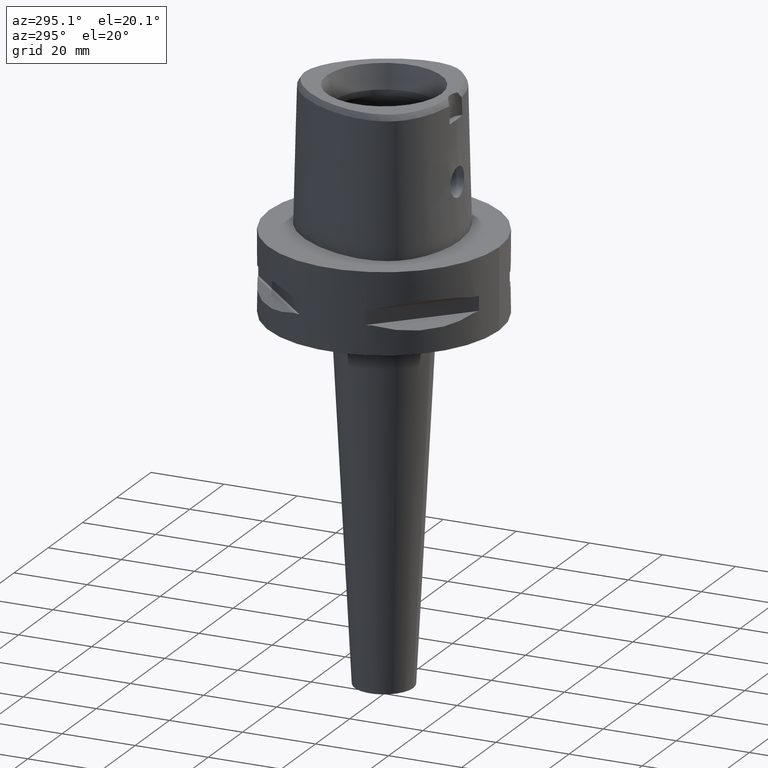
[diagram: clean part render]
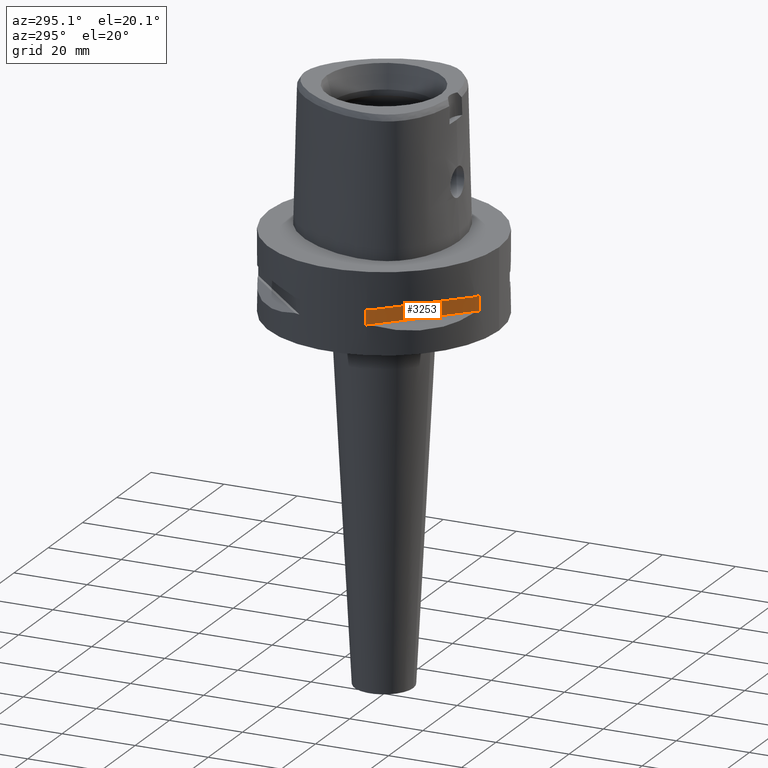
[diagram: same view with one face highlighted and labeled with its STEP entity id]
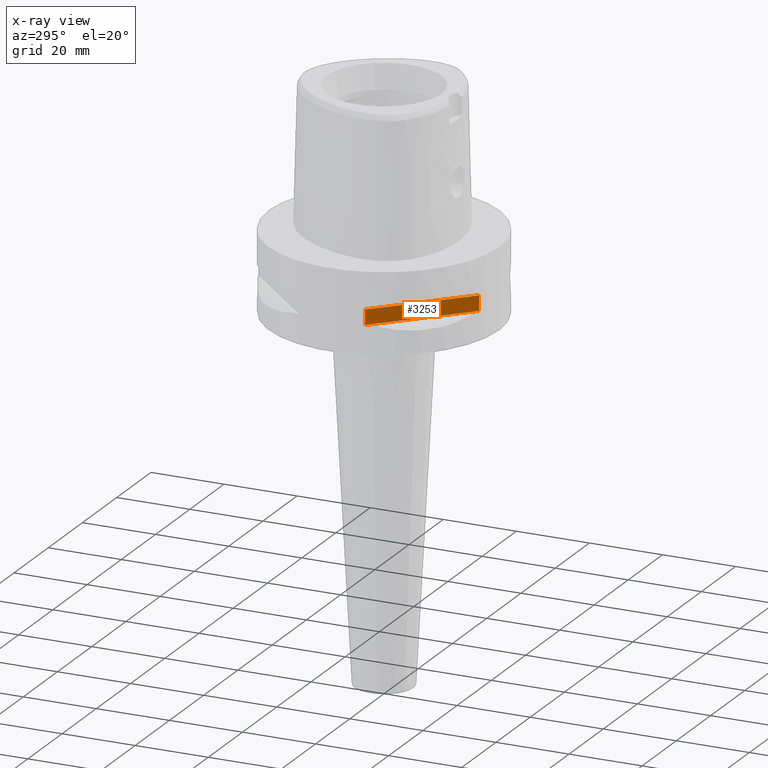
[diagram: x-ray of the same camera — body ghosted, the highlighted face saturated]
A machine part, auxiliary view. The second image highlights one B-rep face of the part: STEP entity #3253.
The next image is the same camera in x-ray: the body ghosted, the highlighted face saturated — about 0% of this face is hidden behind the body in this view.
In plain terms, the highlighted planar face has unit normal (0.7071, 0.7071, 0).
Its self-contained STEP definition (entity closure, byte-faithful):
#438=DIRECTION('',(0.E0,0.E0,-1.E0));
#439=VECTOR('',#438,4.1E0);
#440=CARTESIAN_POINT('',(-3.019251670572E1,-8.981198972017E0,-9.95E0));
#441=LINE('',#440,#439);
#456=DIRECTION('',(0.E0,0.E0,1.E0));
#457=VECTOR('',#456,4.1E0);
#458=CARTESIAN_POINT('',(-8.981198972017E0,-3.019251670572E1,-1.405E1));
#459=LINE('',#458,#457);
#1409=DIRECTION('',(7.071067811865E-1,-7.071067811865E-1,0.E0));
#1410=VECTOR('',#1409,2.999733321480E1);
#1411=CARTESIAN_POINT('',(-3.019251670572E1,-8.981198972017E0,-9.95E0));
#1412=LINE('',#1411,#1410);
#1432=DIRECTION('',(7.071067811865E-1,-7.071067811865E-1,0.E0));
#1433=VECTOR('',#1432,2.999733321480E1);
#1434=CARTESIAN_POINT('',(-3.019251670572E1,-8.981198972017E0,-1.405E1));
#1435=LINE('',#1434,#1433);
#1495=CARTESIAN_POINT('',(-3.019251670572E1,-8.981198972020E0,-9.95E0));
#1496=VERTEX_POINT('',#1495);
#1497=CARTESIAN_POINT('',(-3.019251670572E1,-8.981198972017E0,-1.405E1));
#1498=VERTEX_POINT('',#1497);
#1502=CARTESIAN_POINT('',(-8.981198972020E0,-3.019251670572E1,-1.405E1));
#1503=VERTEX_POINT('',#1502);
#1504=CARTESIAN_POINT('',(-8.981198972017E0,-3.019251670572E1,-9.95E0));
#1505=VERTEX_POINT('',#1504);
#3241=CARTESIAN_POINT('',(-1.909188309204E0,-3.726452736853E1,-9.95E0));
#3242=DIRECTION('',(7.071067811865E-1,7.071067811865E-1,0.E0));
#3243=DIRECTION('',(0.E0,0.E0,-1.E0));
#3244=AXIS2_PLACEMENT_3D('',#3241,#3242,#3243);
#3245=PLANE('',#3244);
#3246=ORIENTED_EDGE('',*,*,#2347,.F.);
#3248=ORIENTED_EDGE('',*,*,#3247,.F.);
#3249=ORIENTED_EDGE('',*,*,#2339,.F.);
#3250=ORIENTED_EDGE('',*,*,#3234,.T.);
#3251=EDGE_LOOP('',(#3246,#3248,#3249,#3250));
#3252=FACE_OUTER_BOUND('',#3251,.F.);
#2339=EDGE_CURVE('',#1496,#1498,#441,.T.);
#2347=EDGE_CURVE('',#1503,#1505,#459,.T.);
#3234=EDGE_CURVE('',#1496,#1505,#1412,.T.);
#3247=EDGE_CURVE('',#1498,#1503,#1435,.T.);
#3253=ADVANCED_FACE('',(#3252),#3245,.F.);